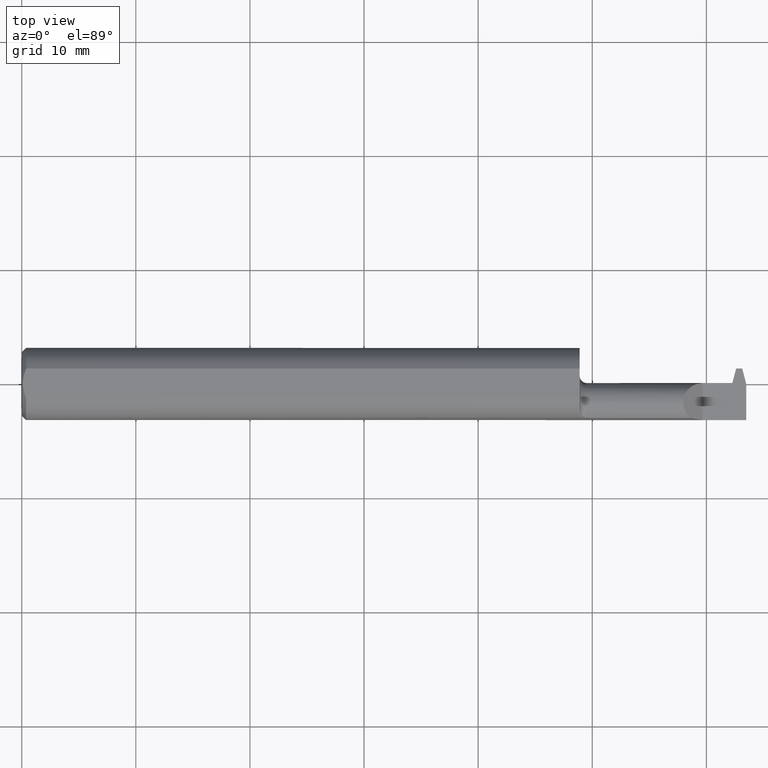
[diagram: clean part render]
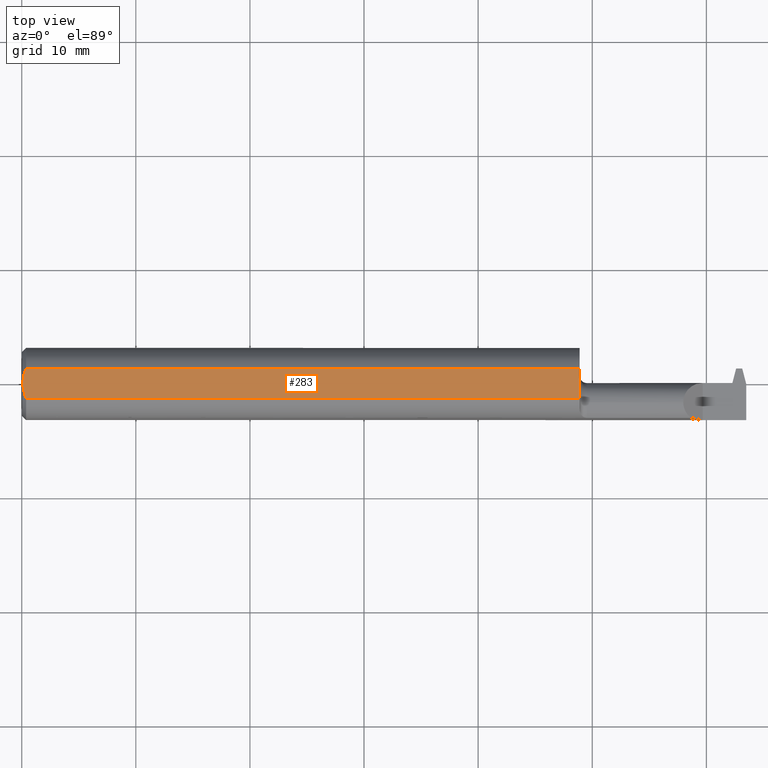
[diagram: same view with one face highlighted and labeled with its STEP entity id]
A machine part, top view. The second image highlights one B-rep face of the part: STEP entity #283.
In plain terms, the highlighted planar face has unit normal (-0, 0, -1).
Its self-contained STEP definition (entity closure, byte-faithful):
#7 = CARTESIAN_POINT ( 'NONE',  ( 0.003999999999982594735, -1.276290005483319770E-15, 0.1138500000000000068 ) ) ;
#21 = VECTOR ( 'NONE', #738, 39.37007874015748143 ) ;
#83 = LINE ( 'NONE', #721, #495 ) ;
#89 = EDGE_CURVE ( 'NONE', #109, #124, #944, .T. ) ;
#102 = ORIENTED_EDGE ( 'NONE', *, *, #748, .F. ) ;
#109 = VERTEX_POINT ( 'NONE', #304 ) ;
#124 = VERTEX_POINT ( 'NONE', #7 ) ;
#130 = CARTESIAN_POINT ( 'NONE',  ( 2.500000000000000000, -0.05124158467494929065, 0.1138500000000000068 ) ) ;
#155 = CARTESIAN_POINT ( 'NONE',  ( 1.925000000000000044, 0.1000000000000000056, 0.1138500000000000068 ) ) ;
#187 = DIRECTION ( 'NONE',  ( 1.000000000000000000, 0.000000000000000000, 0.000000000000000000 ) ) ;
#243 = DIRECTION ( 'NONE',  ( -1.000000000000000000, 0.000000000000000000, 0.000000000000000000 ) ) ;
#283 = ADVANCED_FACE ( 'NONE', ( #396 ), #615, .F. ) ;
#304 = CARTESIAN_POINT ( 'NONE',  ( 0.01499999999999970281, 0.05124158467494929065, 0.1138500000000000068 ) ) ;
#327 = ORIENTED_EDGE ( 'NONE', *, *, #909, .F. ) ;
#358 = VERTEX_POINT ( 'NONE', #875 ) ;
#375 = CARTESIAN_POINT ( 'NONE',  ( 0.005080301127456087092, -0.01778481300359936387, 0.1138500000000000206 ) ) ;
#396 = FACE_OUTER_BOUND ( 'NONE', #687, .T. ) ;
#402 = VERTEX_POINT ( 'NONE', #792 ) ;
#417 = VECTOR ( 'NONE', #432, 39.37007874015748143 ) ;
#432 = DIRECTION ( 'NONE',  ( -1.000000000000000000, -0.000000000000000000, -0.000000000000000000 ) ) ;
#435 = VERTEX_POINT ( 'NONE', #946 ) ;
#447 = CARTESIAN_POINT ( 'NONE',  ( 0.003999999999999733803, 0.008800694614867364887, 0.1138500000000000068 ) ) ;
#451 = CARTESIAN_POINT ( 'NONE',  ( 0.01499999999999969413, -0.05124158467494929065, 0.1138500000000000068 ) ) ;
#456 = CARTESIAN_POINT ( 'NONE',  ( 0.01499999999999970281, 0.05124158467494929065, 0.1138500000000000068 ) ) ;
#495 = VECTOR ( 'NONE', #187, 39.37007874015748143 ) ;
#528 = CARTESIAN_POINT ( 'NONE',  ( 0.01167190377471843954, 0.04313268608482607319, 0.1138500000000000068 ) ) ;
#546 = CARTESIAN_POINT ( 'NONE',  ( 0.000000000000000000, 0.1000000000000000056, 0.1138500000000000068 ) ) ;
#586 = B_SPLINE_CURVE_WITH_KNOTS ( 'NONE', 3,
 ( #661, #812, #375, #901, #673, #451 ),
 .UNSPECIFIED., .F., .F.,
 ( 4, 2, 4 ),
 ( 0.002543458196361374386, 0.003213918189955199643, 0.003884378183549024900 ),
 .UNSPECIFIED. ) ;
#596 = EDGE_CURVE ( 'NONE', #435, #402, #603, .T. ) ;
#603 = LINE ( 'NONE', #155, #21 ) ;
#615 = PLANE ( 'NONE',  #701 ) ;
#661 = CARTESIAN_POINT ( 'NONE',  ( 0.003999999999982594735, -1.276290005483319770E-15, 0.1138500000000000068 ) ) ;
#673 = CARTESIAN_POINT ( 'NONE',  ( 0.01167347033176715718, -0.04313650299737421812, 0.1138500000000000068 ) ) ;
#687 = EDGE_LOOP ( 'NONE', ( #740, #102, #900, #716, #327 ) ) ;
#701 = AXIS2_PLACEMENT_3D ( 'NONE', #546, #919, #243 ) ;
#716 = ORIENTED_EDGE ( 'NONE', *, *, #877, .T. ) ;
#721 = CARTESIAN_POINT ( 'NONE',  ( 2.500000000000000000, 0.05124158467494929065, 0.1138500000000000068 ) ) ;
#738 = DIRECTION ( 'NONE',  ( 0.000000000000000000, -1.000000000000000000, 0.000000000000000000 ) ) ;
#740 = ORIENTED_EDGE ( 'NONE', *, *, #596, .F. ) ;
#748 = EDGE_CURVE ( 'NONE', #109, #435, #83, .T. ) ;
#756 = CARTESIAN_POINT ( 'NONE',  ( 0.003999999999982594735, -1.276290005483319770E-15, 0.1138500000000000068 ) ) ;
#792 = CARTESIAN_POINT ( 'NONE',  ( 1.925000000000000044, -0.05124158467494927677, 0.1138500000000000068 ) ) ;
#812 = CARTESIAN_POINT ( 'NONE',  ( 0.004000000000000225597, -0.008848600531297691474, 0.1138500000000000068 ) ) ;
#821 = CARTESIAN_POINT ( 'NONE',  ( 0.008866562462787448695, 0.03466860267591459488, 0.1138500000000000206 ) ) ;
#875 = CARTESIAN_POINT ( 'NONE',  ( 0.01499999999999969413, -0.05124158467494929065, 0.1138500000000000068 ) ) ;
#877 = EDGE_CURVE ( 'NONE', #124, #358, #586, .T. ) ;
#888 = LINE ( 'NONE', #130, #417 ) ;
#893 = CARTESIAN_POINT ( 'NONE',  ( 0.005030588787081553478, 0.01748826716933455164, 0.1138499999999999790 ) ) ;
#900 = ORIENTED_EDGE ( 'NONE', *, *, #89, .T. ) ;
#901 = CARTESIAN_POINT ( 'NONE',  ( 0.008925039223039965899, -0.03485448893270377130, 0.1138499999999999790 ) ) ;
#909 = EDGE_CURVE ( 'NONE', #402, #358, #888, .T. ) ;
#919 = DIRECTION ( 'NONE',  ( -0.000000000000000000, 0.000000000000000000, -1.000000000000000000 ) ) ;
#944 = B_SPLINE_CURVE_WITH_KNOTS ( 'NONE', 3,
 ( #456, #528, #821, #893, #447, #756 ),
 .UNSPECIFIED., .F., .F.,
 ( 4, 2, 4 ),
 ( 0.001209797888329797611, 0.001876628042345585999, 0.002543458196361374386 ),
 .UNSPECIFIED. ) ;
#946 = CARTESIAN_POINT ( 'NONE',  ( 1.925000000000000044, 0.05124158467494929065, 0.1138500000000000068 ) ) ;